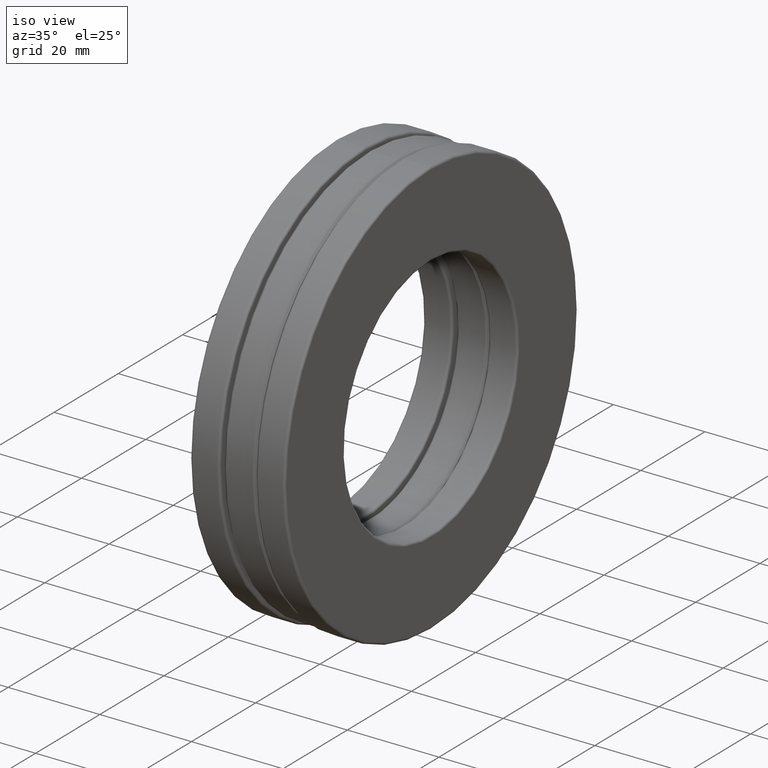
[diagram: clean part render]
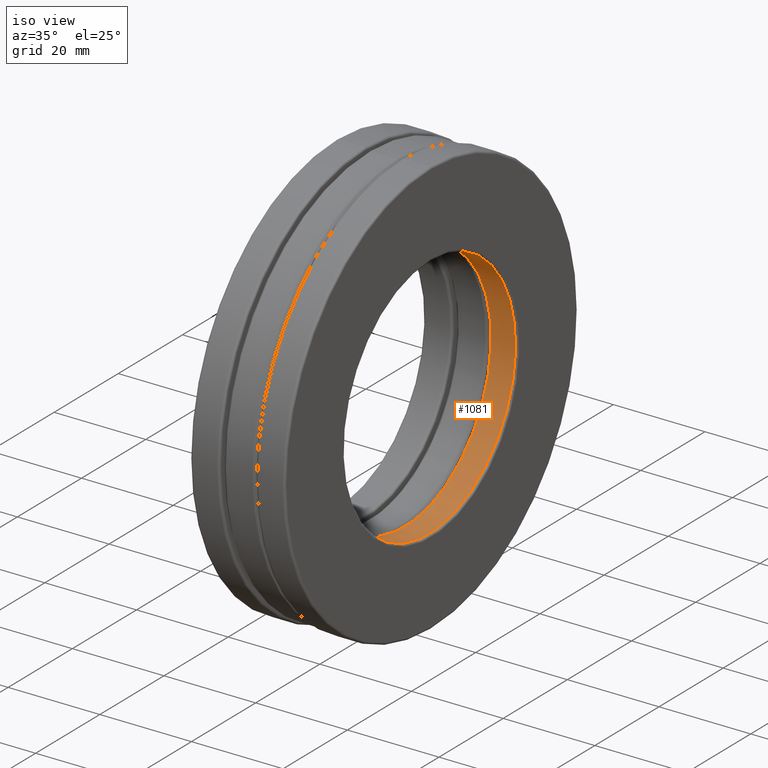
[diagram: same view with one face highlighted and labeled with its STEP entity id]
A machine part, iso view. The second image highlights one B-rep face of the part: STEP entity #1081.
In plain terms, the highlighted cylindrical surface (bore or boss wall) has radius 26.9875 mm, axis along (-1, -0, -0).
Its self-contained STEP definition (entity closure, byte-faithful):
#89 = CIRCLE ( 'NONE', #717, 1.062500000000000000 ) ;
#182 = EDGE_LOOP ( 'NONE', ( #1086 ) ) ;
#214 = CARTESIAN_POINT ( 'NONE',  ( 0.1760000000000000500, 0.0000000000000000000, 0.0000000000000000000 ) ) ;
#263 = EDGE_LOOP ( 'NONE', ( #484 ) ) ;
#323 = EDGE_CURVE ( 'NONE', #678, #678, #1205, .T. ) ;
#346 = CARTESIAN_POINT ( 'NONE',  ( 0.0000000000000000000, 0.0000000000000000000, 0.0000000000000000000 ) ) ;
#374 = CARTESIAN_POINT ( 'NONE',  ( 0.3860000000000000700, 0.0000000000000000000, 0.0000000000000000000 ) ) ;
#386 = DIRECTION ( 'NONE',  ( 0.0000000000000000000, 0.0000000000000000000, 1.000000000000000000 ) ) ;
#407 = CARTESIAN_POINT ( 'NONE',  ( 0.3860000000000000700, 0.0000000000000000000, 1.062500000000000000 ) ) ;
#437 = DIRECTION ( 'NONE',  ( 0.0000000000000000000, 0.0000000000000000000, 1.000000000000000000 ) ) ;
#484 = ORIENTED_EDGE ( 'NONE', *, *, #323, .F. ) ;
#530 = CYLINDRICAL_SURFACE ( 'NONE', #896, 1.062500000000000000 ) ;
#559 = DIRECTION ( 'NONE',  ( -1.000000000000000000, -0.0000000000000000000, -0.0000000000000000000 ) ) ;
#576 = DIRECTION ( 'NONE',  ( -1.000000000000000000, -0.0000000000000000000, -0.0000000000000000000 ) ) ;
#637 = CARTESIAN_POINT ( 'NONE',  ( 0.1760000000000000500, 0.0000000000000000000, 1.062500000000000000 ) ) ;
#678 = VERTEX_POINT ( 'NONE', #407 ) ;
#700 = VERTEX_POINT ( 'NONE', #637 ) ;
#717 = AXIS2_PLACEMENT_3D ( 'NONE', #214, #559, #1126 ) ;
#896 = AXIS2_PLACEMENT_3D ( 'NONE', #346, #576, #437 ) ;
#1019 = AXIS2_PLACEMENT_3D ( 'NONE', #374, #1283, #386 ) ;
#1081 = ADVANCED_FACE ( 'NONE', ( #1112, #1310 ), #530, .F. ) ;
#1086 = ORIENTED_EDGE ( 'NONE', *, *, #1096, .T. ) ;
#1096 = EDGE_CURVE ( 'NONE', #700, #700, #89, .T. ) ;
#1112 = FACE_OUTER_BOUND ( 'NONE', #182, .T. ) ;
#1126 = DIRECTION ( 'NONE',  ( 0.0000000000000000000, 0.0000000000000000000, 1.000000000000000000 ) ) ;
#1205 = CIRCLE ( 'NONE', #1019, 1.062500000000000000 ) ;
#1283 = DIRECTION ( 'NONE',  ( -1.000000000000000000, -0.0000000000000000000, -0.0000000000000000000 ) ) ;
#1310 = FACE_OUTER_BOUND ( 'NONE', #263, .T. ) ;